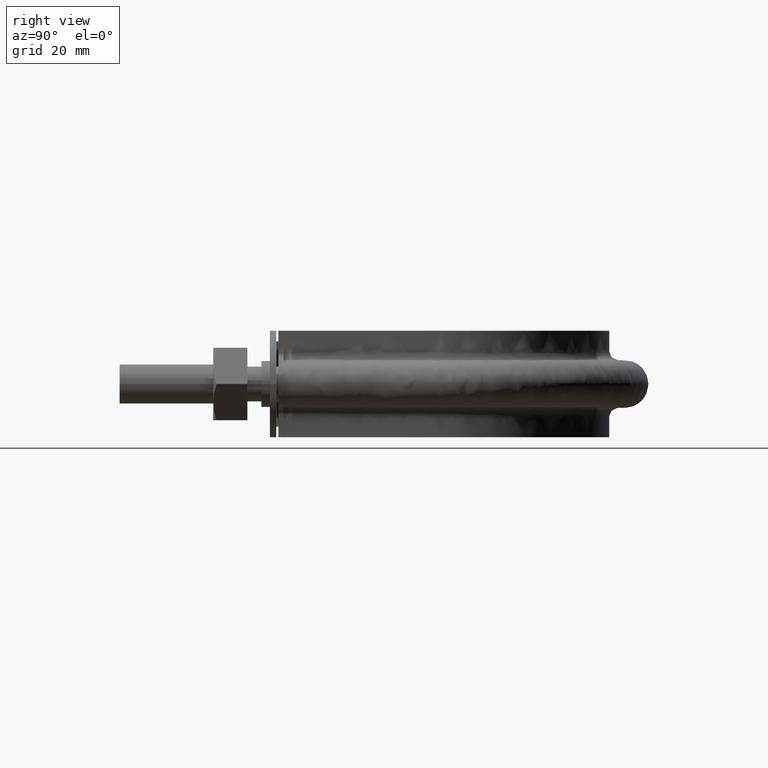
[diagram: clean part render]
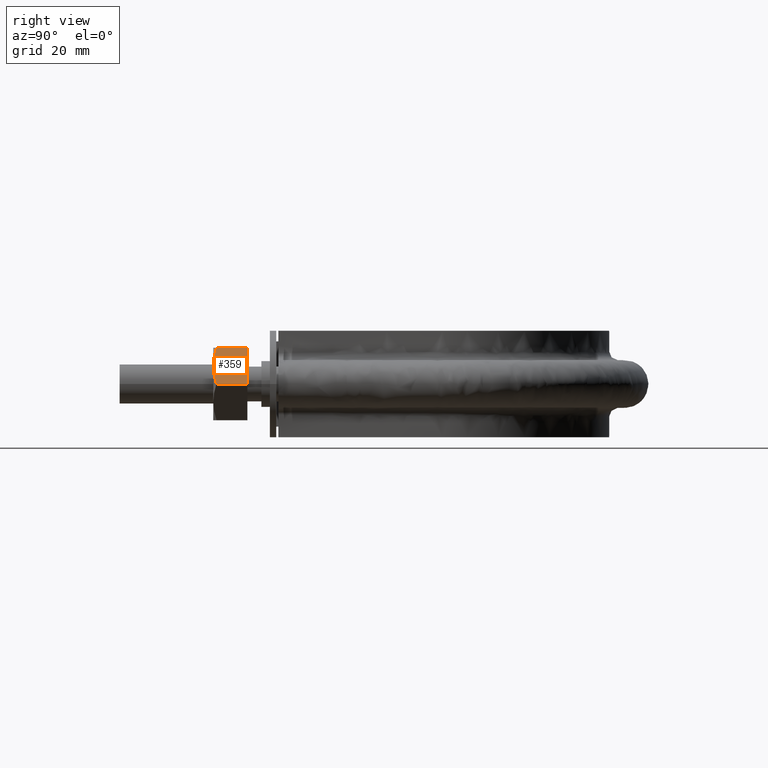
[diagram: same view with one face highlighted and labeled with its STEP entity id]
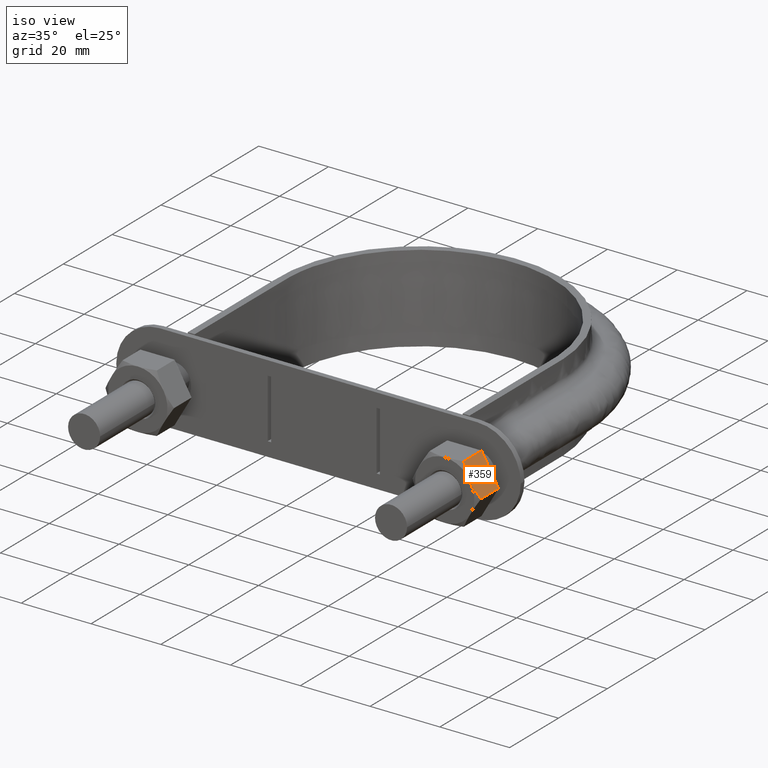
[diagram: same view with one face highlighted and labeled with its STEP entity id]
A machine part, right view. The second image highlights one B-rep face of the part: STEP entity #359.
A second angle (iso view) of the same face is appended — the face is thin or edge-on in the first view.
In plain terms, the highlighted planar face has unit normal (-0.866, 0, -0.5).
Its self-contained STEP definition (entity closure, byte-faithful):
#359 = ADVANCED_FACE( '', ( #592 ), #593, .F. );
#592 = FACE_OUTER_BOUND( '', #1674, .T. );
#593 = PLANE( '', #1675 );
#1674 = EDGE_LOOP( '', ( #2389, #2390, #2391, #2392, #2393 ) );
#1675 = AXIS2_PLACEMENT_3D( '', #2394, #2395, #2396 );
#2389 = ORIENTED_EDGE( '', *, *, #2736, .F. );
#2390 = ORIENTED_EDGE( '', *, *, #2743, .F. );
#2391 = ORIENTED_EDGE( '', *, *, #2744, .F. );
#2392 = ORIENTED_EDGE( '', *, *, #2745, .F. );
#2393 = ORIENTED_EDGE( '', *, *, #2746, .F. );
#2394 = CARTESIAN_POINT( '', ( 48.9074772881123, 30.0000000000000, 8.49999999999879 ) );
#2395 = DIRECTION( '', ( -0.866025403784492, 2.42723201254769E-016, -0.499999999999908 ) );
#2396 = DIRECTION( '', ( -0.499999999999908, 6.94336247799113E-017, 0.866025403784492 ) );
#2736 = EDGE_CURVE( '', #3102, #3098, #3104, .T. );
#2743 = EDGE_CURVE( '', #3116, #3102, #3117, .T. );
#2744 = EDGE_CURVE( '', #3118, #3116, #3119, .F. );
#2745 = EDGE_CURVE( '', #3120, #3118, #3121, .T. );
#2746 = EDGE_CURVE( '', #3098, #3120, #3122, .T. );
#3098 = VERTEX_POINT( '', #3913 );
#3102 = VERTEX_POINT( '', #3922 );
#3104 = B_SPLINE_CURVE_WITH_KNOTS( '', 3, ( #3924, #3925, #3926, #3927, #3928, #3929, #3930, #3931 ), .UNSPECIFIED., .F., .F., ( 4, 2, 2, 4 ), ( 0.00493506423427991, 0.00616384870526186, 0.00739263317624382, 0.00985020211820772 ), .UNSPECIFIED. );
#3116 = VERTEX_POINT( '', #3943 );
#3117 = B_SPLINE_CURVE_WITH_KNOTS( '', 3, ( #3944, #3945, #3946, #3947, #3948, #3949 ), .UNSPECIFIED., .F., .F., ( 4, 2, 4 ), ( 4.83064900407429E-007, 0.00246777364959016, 0.00493506423427991 ), .UNSPECIFIED. );
#3118 = VERTEX_POINT( '', #3950 );
#3119 = LINE( '', #3951, #3952 );
#3120 = VERTEX_POINT( '', #3953 );
#3121 = LINE( '', #3954, #3955 );
#3122 = LINE( '', #3956, #3957 );
#3913 = CARTESIAN_POINT( '', ( 48.9224662525168, 22.7505553499489, 8.47403835209740 ) );
#3922 = CARTESIAN_POINT( '', ( 51.3612159321664, 22.0000000000026, 4.24999999999818 ) );
#3924 = CARTESIAN_POINT( '', ( 51.3612159321675, 22.0000000000033, 4.24999999999896 ) );
#3925 = CARTESIAN_POINT( '', ( 51.1543614605609, 22.0000000000033, 4.60828245459454 ) );
#3926 = CARTESIAN_POINT( '', ( 50.9464724694540, 22.0177112081796, 4.96835674952600 ) );
#3927 = CARTESIAN_POINT( '', ( 50.5352159436567, 22.0863021936245, 5.68067394715138 ) );
#3928 = CARTESIAN_POINT( '', ( 50.3309547652764, 22.1371116504227, 6.03446468612004 ) );
#3929 = CARTESIAN_POINT( '', ( 49.7217813693346, 22.3331494013945, 7.08958395851081 ) );
#3930 = CARTESIAN_POINT( '', ( 49.3204658996236, 22.5218253127388, 7.78468274191379 ) );
#3931 = CARTESIAN_POINT( '', ( 48.9224662525169, 22.7505553499498, 8.47403835209727 ) );
#3943 = CARTESIAN_POINT( '', ( 53.7999656118160, 22.7505553499489, 0.0259616478989559 ) );
#3944 = CARTESIAN_POINT( '', ( 53.7999656118183, 22.7505553499498, 0.0259616479004492 ) );
#3945 = CARTESIAN_POINT( '', ( 53.4009132475376, 22.5212203171310, 0.717140617715366 ) );
#3946 = CARTESIAN_POINT( '', ( 52.9989787792958, 22.3324525365473, 1.41331153802357 ) );
#3947 = CARTESIAN_POINT( '', ( 52.1868332408953, 22.0714148540619, 2.81998887367387 ) );
#3948 = CARTESIAN_POINT( '', ( 51.7765614237883, 22.0000000000033, 3.53060050581687 ) );
#3949 = CARTESIAN_POINT( '', ( 51.3612159321675, 22.0000000000033, 4.24999999999896 ) );
#3950 = CARTESIAN_POINT( '', ( 53.7999656118160, 30.0000000000000, 0.0259616478989572 ) );
#3951 = CARTESIAN_POINT( '', ( 53.7999656118160, 30.0000000000000, 0.0259616478989563 ) );
#3952 = VECTOR( '', #4378, 999.999999999891 );
#3953 = CARTESIAN_POINT( '', ( 48.9224662525168, 30.0000000000000, 8.47403835209740 ) );
#3954 = CARTESIAN_POINT( '', ( 48.9112159321682, 30.0000000000000, 8.49352447854254 ) );
#3955 = VECTOR( '', #4379, 1000.00000000014 );
#3956 = CARTESIAN_POINT( '', ( 48.9224662525168, 30.0000000000000, 8.47403835209740 ) );
#3957 = VECTOR( '', #4380, 999.999999999891 );
#4378 = DIRECTION( '', ( 2.44921270764475E-016, 1.00000000000000, 6.12303176911189E-017 ) );
#4379 = DIRECTION( '', ( 0.499999999999663, -6.94336247798426E-017, -0.866025403784633 ) );
#4380 = DIRECTION( '', ( 2.44921270764475E-016, 1.00000000000000, 6.12303176911189E-017 ) );